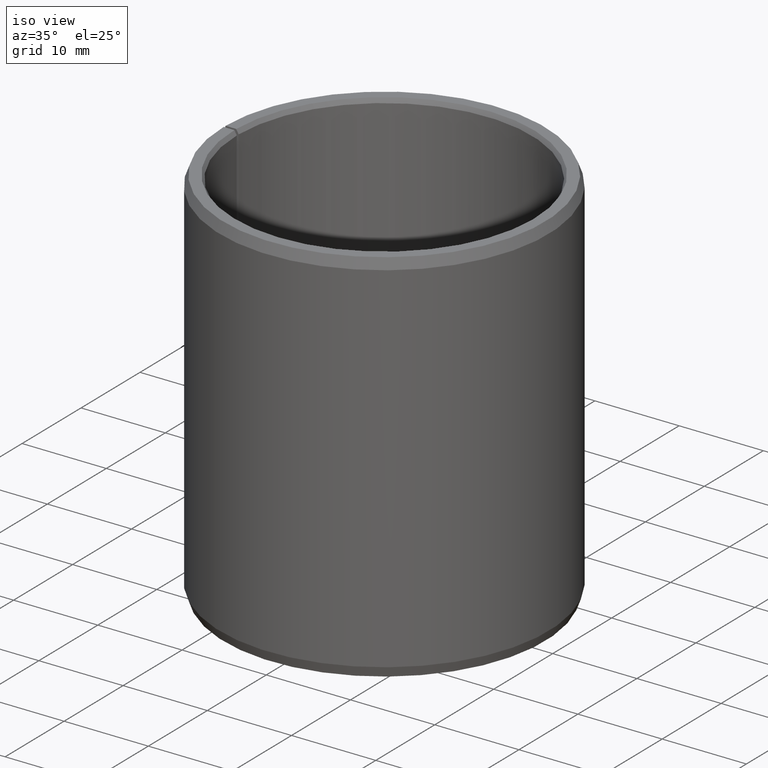
[diagram: clean part render]
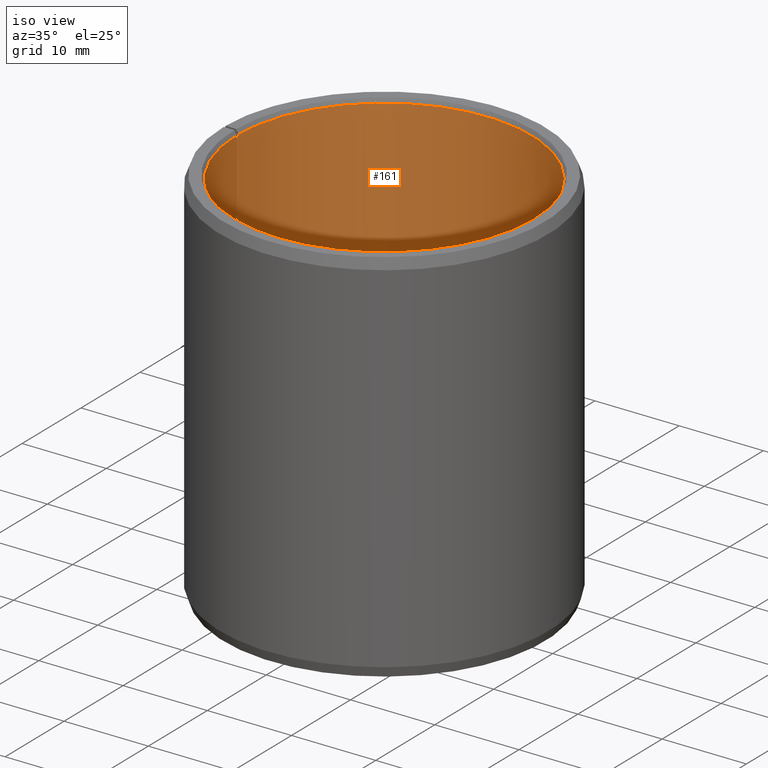
[diagram: same view with one face highlighted and labeled with its STEP entity id]
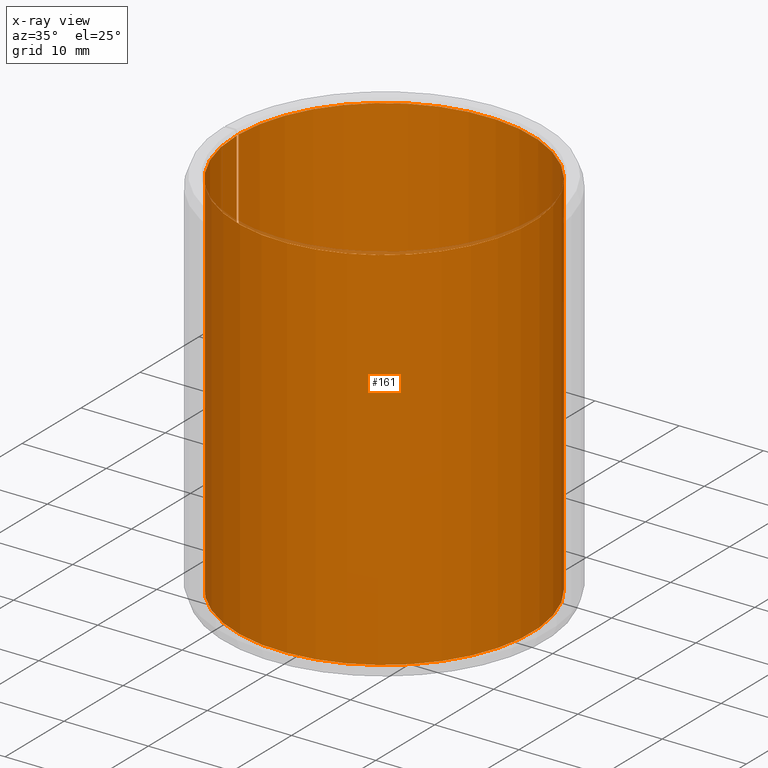
[diagram: x-ray of the same camera — body ghosted, the highlighted face saturated]
A machine part, iso view. The second image highlights one B-rep face of the part: STEP entity #161.
The next image is the same camera in x-ray: the body ghosted, the highlighted face saturated — about 1% of this face is hidden behind the body in this view.
In plain terms, the highlighted cylindrical surface (partial cylindrical patch) has radius 17.5 mm, axis along (-0, 0, -1).
Its self-contained STEP definition (entity closure, byte-faithful):
#161=ADVANCED_FACE('',(#182,#183),#184,.F.);
#182=FACE_OUTER_BOUND('',#208,.T.);
#183=FACE_BOUND('',#209,.T.);
#184=CYLINDRICAL_SURFACE('',#210,0.0175);
#208=EDGE_LOOP('',(#281,#282,#283,#284));
#209=EDGE_LOOP('',(#285));
#210=AXIS2_PLACEMENT_3D('',#286,#287,#288);
#281=ORIENTED_EDGE('',*,*,#304,.T.);
#282=ORIENTED_EDGE('',*,*,#322,.F.);
#283=ORIENTED_EDGE('',*,*,#319,.F.);
#284=ORIENTED_EDGE('',*,*,#325,.T.);
#285=ORIENTED_EDGE('',*,*,#326,.T.);
#286=CARTESIAN_POINT('',(-6.93889390390723E-018,-6.93889390390723E-018,0.0));
#287=DIRECTION('',(6.12323399573677E-017,0.0,-1.0));
#288=DIRECTION('',(-1.0,0.0,-6.12323399573677E-017));
#304=EDGE_CURVE('',#333,#331,#334,.T.);
#319=EDGE_CURVE('',#359,#360,#361,.T.);
#322=EDGE_CURVE('',#360,#331,#364,.T.);
#325=EDGE_CURVE('',#359,#333,#367,.T.);
#326=EDGE_CURVE('',#368,#368,#369,.T.);
#331=VERTEX_POINT('',#375);
#333=VERTEX_POINT('',#378);
#334=CIRCLE('',#379,0.0175);
#359=VERTEX_POINT('',#413);
#360=VERTEX_POINT('',#414);
#361=CIRCLE('',#415,0.0175);
#364=LINE('',#420,#421);
#367=LINE('',#426,#427);
#368=VERTEX_POINT('',#428);
#369=B_SPLINE_CURVE_WITH_KNOTS('',3,(#429,#430,#431,#432,#433,#434,#435,#436,#437,#438,#439,#440,#441,#442,#443,#444,#445,#446,#447,#448,#449,#450,#451,#452,#453,#454,#455,#456,#457,#458,#459,#460,#461,#462,#463,#464,#465,#466,#467,#468,#469,#470,#471,#472,#473,#474,#475,#476,#477,#478,#479,#480,#481,#482,#483,#484,#485,#486,#487,#488,#489,#490,#491,#492),.UNSPECIFIED.,.T.,.F.,(2,2,2,2,2,2,2,2,2,2,2,2,2,2,2,2,2,2,2,2,2,2,2,2,2,2,2,2,2,2,2,2,2,2),(-0.000587221033477321,0.0,0.000587221033477315,0.00117444206695463,0.00176166310043194,0.00234888413390926,0.00293610516738657,0.00352332620086389,0.0041105472343412,0.00469776826781852,0.00528498930129583,0.00587221033477315,0.00645943136825047,0.00704665240172778,0.0076338734352051,0.00822109446868242,0.00880831550215973,0.00939553653563705,0.00998275756911437,0.0105699786025917,0.011157199636069,0.0117444206695463,0.0123316417030236,0.012918862736501,0.0135060837699783,0.0140933048034556,0.0146805258369329,0.0152677468704102,0.0158549679038875,0.0164421889373649,0.0176166310043195,0.0182038520377968,0.0187910730712742,0.0193782941047515),.UNSPECIFIED.);
#375=CARTESIAN_POINT('',(-6.93889390390723E-018,0.0175,0.0005));
#378=CARTESIAN_POINT('',(0.000305417112652456,0.0174973346652368,0.0005));
#379=AXIS2_PLACEMENT_3D('',#564,#565,#566);
#413=CARTESIAN_POINT('',(0.000305417112652452,0.0174973346652368,0.0445));
#414=CARTESIAN_POINT('',(-1.04083408558608E-017,0.0175,0.0445));
#415=AXIS2_PLACEMENT_3D('',#591,#592,#593);
#420=CARTESIAN_POINT('',(-1.04083408558608E-017,0.0175,0.0445));
#421=VECTOR('',#596,1.0);
#426=CARTESIAN_POINT('',(0.000305417112652452,0.0174973346652368,0.0445));
#427=VECTOR('',#599,1.0);
#428=CARTESIAN_POINT('',(0.0132332554762969,-0.0114512422688134,0.0225));
#429=CARTESIAN_POINT('',(0.0132332554762969,-0.0114512422688134,0.0226985878317533));
#430=CARTESIAN_POINT('',(0.0132332554762969,-0.0114512422688134,0.0223014121682467));
#431=CARTESIAN_POINT('',(0.0132462502499575,-0.0114362737386044,0.0221062176435053));
#432=CARTESIAN_POINT('',(0.0132967856915806,-0.0113774774436589,0.0217223142861927));
#433=CARTESIAN_POINT('',(0.0133349512166993,-0.0113329122363727,0.0215315892892266));
#434=CARTESIAN_POINT('',(0.0134332823169054,-0.0112161825013413,0.0211684752862356));
#435=CARTESIAN_POINT('',(0.0134930062507869,-0.0111445446238804,0.0209963131621455));
#436=CARTESIAN_POINT('',(0.0136319949479402,-0.0109740970606592,0.0206704904128848));
#437=CARTESIAN_POINT('',(0.0137118177895944,-0.0108745303504638,0.0205165114209431));
#438=CARTESIAN_POINT('',(0.0138829860812394,-0.0106551421814216,0.0202403638861638));
#439=CARTESIAN_POINT('',(0.0139750082710844,-0.0105345267094124,0.0201163122925779));
#440=CARTESIAN_POINT('',(0.014170744849594,-0.0102697175996181,0.0198969842881805));
#441=CARTESIAN_POINT('',(0.0142726459601957,-0.010127895441503,0.0198040147591158));
#442=CARTESIAN_POINT('',(0.0144788487600751,-0.00983085079542873,0.0196542709472813));
#443=CARTESIAN_POINT('',(0.0145846663252628,-0.00967342091672745,0.0195964702585244));
#444=CARTESIAN_POINT('',(0.0147953310885796,-0.00934803412652868,0.0195192580935964));
#445=CARTESIAN_POINT('',(0.0148985468925628,-0.00918268677568743,0.0195001134949072));
#446=CARTESIAN_POINT('',(0.0151005273899564,-0.00884660999905928,0.0194998875016784));
#447=CARTESIAN_POINT('',(0.0152002169650322,-0.00867412868765641,0.0195194493594291));
#448=CARTESIAN_POINT('',(0.0153874655062465,-0.00833744622580273,0.0195961401973281));
#449=CARTESIAN_POINT('',(0.0154757713245558,-0.00817212996581181,0.0196528789371973));
#450=CARTESIAN_POINT('',(0.0156425884606747,-0.0078480973820429,0.0198034398994126));
#451=CARTESIAN_POINT('',(0.0157204304473556,-0.00769055623308388,0.019897210710964));
#452=CARTESIAN_POINT('',(0.0158610055222887,-0.00739628909969721,0.0201141520984759));
#453=CARTESIAN_POINT('',(0.0159248137641371,-0.00725741734420678,0.0202385004856519));
#454=CARTESIAN_POINT('',(0.0160394565945397,-0.00700040228003512,0.0205176979679346));
#455=CARTESIAN_POINT('',(0.01608884282041,-0.00688557766368859,0.02066878271299));
#456=CARTESIAN_POINT('',(0.0161739317565395,-0.00668326077580005,0.0209932731220683));
#457=CARTESIAN_POINT('',(0.0162099061215927,-0.00659505535272145,0.0211688246161539));
#458=CARTESIAN_POINT('',(0.0162667487333886,-0.0064535801863081,0.021531632484502));
#459=CARTESIAN_POINT('',(0.0162878286878656,-0.00639985670048641,0.0217186150305246));
#460=CARTESIAN_POINT('',(0.0163162673062908,-0.00632700168655616,0.0221037881701371));
#461=CARTESIAN_POINT('',(0.0163234555917626,-0.00630831178286999,0.0223028528799608));
#462=CARTESIAN_POINT('',(0.0163235120893371,-0.00630816558718994,0.0226947832427621));
#463=CARTESIAN_POINT('',(0.0163166118268718,-0.00632611288869702,0.0228898092725015));
#464=CARTESIAN_POINT('',(0.0162882086375017,-0.00639888937008356,0.0232779317401875));
#465=CARTESIAN_POINT('',(0.0162669209572252,-0.00645313989616637,0.0234668043320222));
#466=CARTESIAN_POINT('',(0.0162104771107113,-0.00659364571320098,0.0238279888187092));
#467=CARTESIAN_POINT('',(0.0161748164788111,-0.00668113022564001,0.0240029711009562));
#468=CARTESIAN_POINT('',(0.0160892318972891,-0.00688467908986579,0.0243301097377904));
#469=CARTESIAN_POINT('',(0.0160398563298427,-0.0069994554634311,0.0244809493180013));
#470=CARTESIAN_POINT('',(0.0159265085873207,-0.00725366749200372,0.0247577442691008));
#471=CARTESIAN_POINT('',(0.0158618337861023,-0.00739451757044189,0.0248843844691109));
#472=CARTESIAN_POINT('',(0.0157210962847255,-0.00768919974795156,0.0251019450060842));
#473=CARTESIAN_POINT('',(0.0156446517721771,-0.00784398279549365,0.0251942998988418));
#474=CARTESIAN_POINT('',(0.0154779482977019,-0.0081680053662048,0.0253455442018506));
#475=CARTESIAN_POINT('',(0.0153882644433432,-0.0083359552465319,0.0254033597770707));
#476=CARTESIAN_POINT('',(0.0152017490202574,-0.0086714277472367,0.025480093822618));
#477=CARTESIAN_POINT('',(0.0151037090301961,-0.00884122506740632,0.0254998427249298));
#478=CARTESIAN_POINT('',(0.0148995836961111,-0.00918105074835891,0.025500155408601));
#479=CARTESIAN_POINT('',(0.0147962420271354,-0.00934655884143399,0.0254808583042674));
#480=CARTESIAN_POINT('',(0.0145873953858909,-0.0096692727832886,0.0254047437067506));
#481=CARTESIAN_POINT('',(0.0144807169137241,-0.00982811726194725,0.025346922746799));
#482=CARTESIAN_POINT('',(0.0142734134702907,-0.0101268316445039,0.0251967034984746));
#483=CARTESIAN_POINT('',(0.0141725489638869,-0.0102672168446168,0.0251047131447361));
#484=CARTESIAN_POINT('',(0.0139776769097401,-0.0105309749821691,0.0248869947544013));
#485=CARTESIAN_POINT('',(0.0138838162794268,-0.0106540605298257,0.0247608149873488));
#486=CARTESIAN_POINT('',(0.0136270706203179,-0.0109831865742659,0.0243470837705835));
#487=CARTESIAN_POINT('',(0.0134826876658335,-0.0111575192700993,0.024013107326676));
#488=CARTESIAN_POINT('',(0.0133358098252313,-0.0113318997544334,0.0234720070217644));
#489=CARTESIAN_POINT('',(0.0132975048512904,-0.0113766388027506,0.0232822094163142));
#490=CARTESIAN_POINT('',(0.0132462532029104,-0.0114362721986988,0.0228947311625998));
#491=CARTESIAN_POINT('',(0.0132332554762969,-0.0114512422688134,0.0226985878317533));
#492=CARTESIAN_POINT('',(0.0132332554762969,-0.0114512422688134,0.0223014121682467));
#564=CARTESIAN_POINT('',(-6.93889390390723E-018,-6.93889390390723E-018,0.0005));
#565=DIRECTION('',(6.12323399573677E-017,0.0,-1.0));
#566=DIRECTION('',(-1.0,0.0,-6.12323399573677E-017));
#591=CARTESIAN_POINT('',(-1.04083408558608E-017,-6.93889390390723E-018,0.0445));
#592=DIRECTION('',(6.12323399573677E-017,0.0,-1.0));
#593=DIRECTION('',(-1.0,0.0,-6.12323399573677E-017));
#596=DIRECTION('',(7.88510670898549E-017,1.5770213417971E-016,-1.0));
#599=DIRECTION('',(8.16006654141057E-017,1.57370626194003E-016,-1.0));